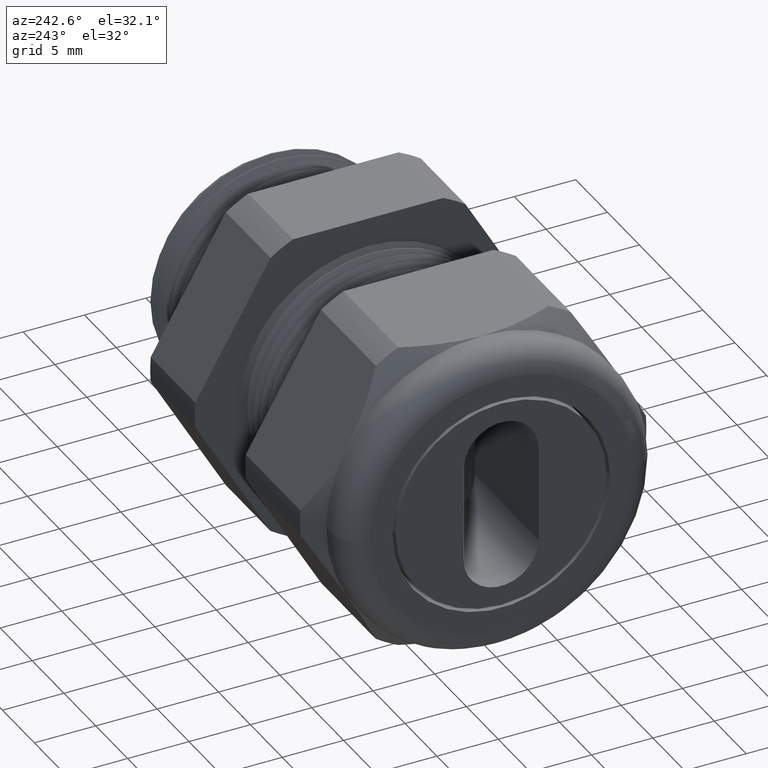
[diagram: clean part render]
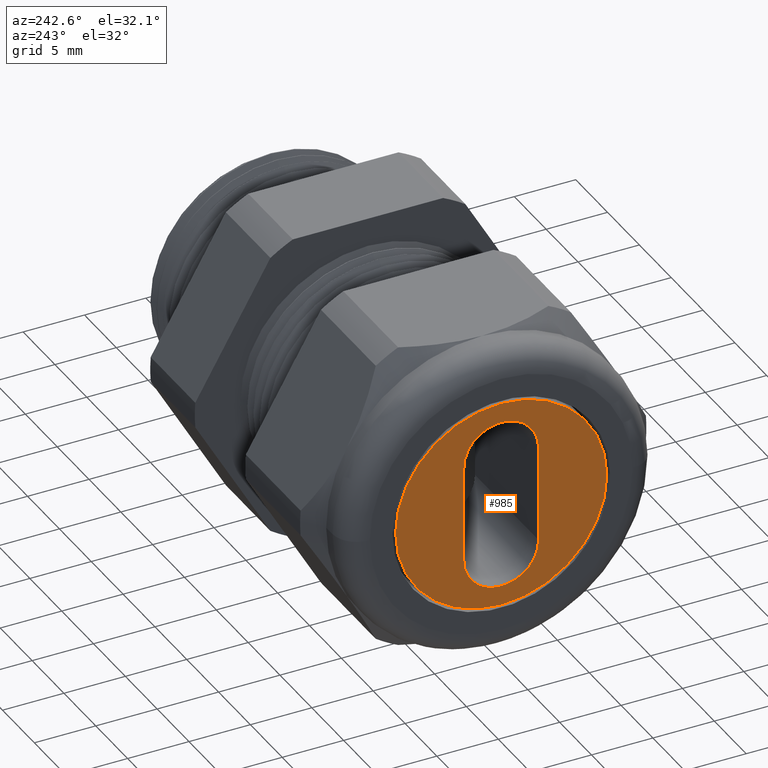
[diagram: same view with one face highlighted and labeled with its STEP entity id]
A machine part, auxiliary view. The second image highlights one B-rep face of the part: STEP entity #985.
In plain terms, the highlighted planar face has unit normal (-1, 0, 0).
Its self-contained STEP definition (entity closure, byte-faithful):
#918 = ORIENTED_EDGE ( 'NONE', *, *, #982, .T. ) ;
#919 = ORIENTED_EDGE ( 'NONE', *, *, #947, .T. ) ;
#923 = VERTEX_POINT ( 'NONE', #2841 ) ;
#924 = ORIENTED_EDGE ( 'NONE', *, *, #925, .F. ) ;
#925 = EDGE_CURVE ( 'NONE', #932, #923, #2903, .T. ) ;
#926 = EDGE_LOOP ( 'NONE', ( #918, #919 ) ) ;
#928 = VERTEX_POINT ( 'NONE', #2894 ) ;
#929 = ORIENTED_EDGE ( 'NONE', *, *, #930, .F. ) ;
#930 = EDGE_CURVE ( 'NONE', #931, #932, #2893, .T. ) ;
#931 = VERTEX_POINT ( 'NONE', #2888 ) ;
#932 = VERTEX_POINT ( 'NONE', #2887 ) ;
#933 = ORIENTED_EDGE ( 'NONE', *, *, #934, .F. ) ;
#934 = EDGE_CURVE ( 'NONE', #935, #931, #2886, .T. ) ;
#935 = VERTEX_POINT ( 'NONE', #2882 ) ;
#936 = ORIENTED_EDGE ( 'NONE', *, *, #937, .F. ) ;
#937 = EDGE_CURVE ( 'NONE', #923, #935, #2881, .T. ) ;
#947 = EDGE_CURVE ( 'NONE', #928, #983, #2931, .T. ) ;
#982 = EDGE_CURVE ( 'NONE', #983, #928, #2999, .T. ) ;
#983 = VERTEX_POINT ( 'NONE', #2994 ) ;
#985 = ADVANCED_FACE ( 'NONE', ( #2993, #2992 ), #2991, .T. ) ;
#986 = EDGE_LOOP ( 'NONE', ( #929, #933, #936, #924 ) ) ;
#2841 = CARTESIAN_POINT ( 'NONE',  ( -1.409999999999999900, -0.1199999999999999500, 0.1550000000000000500 ) ) ;
#2877 = DIRECTION ( 'NONE',  ( 0.0000000000000000000, 1.000000000000000000, 0.0000000000000000000 ) ) ;
#2878 = DIRECTION ( 'NONE',  ( -1.000000000000000000, 3.749030204222210100E-017, 0.0000000000000000000 ) ) ;
#2879 = CARTESIAN_POINT ( 'NONE',  ( -1.409999999999999900, 5.296200667510213900E-017, 0.1550000000000000500 ) ) ;
#2880 = AXIS2_PLACEMENT_3D ( 'NONE', #2879, #2878, #2877 ) ;
#2881 = CIRCLE ( 'NONE', #2880, 0.1200000000000000000 ) ;
#2882 = CARTESIAN_POINT ( 'NONE',  ( -1.409999999999999900, 0.1200000000000000500, 0.1550000000000000500 ) ) ;
#2883 = DIRECTION ( 'NONE',  ( 0.0000000000000000000, 0.0000000000000000000, -1.000000000000000000 ) ) ;
#2884 = VECTOR ( 'NONE', #2883, 39.37007874015748100 ) ;
#2885 = CARTESIAN_POINT ( 'NONE',  ( -1.409999999999999900, 0.1200000000000000500, -0.1550000000000000500 ) ) ;
#2886 = LINE ( 'NONE', #2885, #2884 ) ;
#2887 = CARTESIAN_POINT ( 'NONE',  ( -1.409999999999999900, -0.1199999999999999500, -0.1550000000000000500 ) ) ;
#2888 = CARTESIAN_POINT ( 'NONE',  ( -1.409999999999999900, 0.1200000000000000500, -0.1550000000000000500 ) ) ;
#2889 = DIRECTION ( 'NONE',  ( 0.0000000000000000000, -1.000000000000000000, 0.0000000000000000000 ) ) ;
#2890 = DIRECTION ( 'NONE',  ( -1.000000000000000000, 3.749030204222210100E-017, 0.0000000000000000000 ) ) ;
#2891 = CARTESIAN_POINT ( 'NONE',  ( -1.409999999999999900, 5.286132587953316300E-017, -0.1550000000000000500 ) ) ;
#2892 = AXIS2_PLACEMENT_3D ( 'NONE', #2891, #2890, #2889 ) ;
#2893 = CIRCLE ( 'NONE', #2892, 0.1200000000000000000 ) ;
#2894 = CARTESIAN_POINT ( 'NONE',  ( -1.409999999999999900, 0.3384999999999997500, 4.145429415113786400E-017 ) ) ;
#2900 = DIRECTION ( 'NONE',  ( 0.0000000000000000000, 0.0000000000000000000, 1.000000000000000000 ) ) ;
#2901 = VECTOR ( 'NONE', #2900, 39.37007874015748100 ) ;
#2902 = CARTESIAN_POINT ( 'NONE',  ( -1.409999999999999900, -0.1199999999999999500, -0.1550000000000000500 ) ) ;
#2903 = LINE ( 'NONE', #2902, #2901 ) ;
#2927 = DIRECTION ( 'NONE',  ( 0.0000000000000000000, -1.000000000000000000, 0.0000000000000000000 ) ) ;
#2928 = DIRECTION ( 'NONE',  ( -1.000000000000000000, 3.749030204222210100E-017, 0.0000000000000000000 ) ) ;
#2929 = CARTESIAN_POINT ( 'NONE',  ( -1.409999999999999900, 5.286132587953316300E-017, 0.0000000000000000000 ) ) ;
#2930 = AXIS2_PLACEMENT_3D ( 'NONE', #2929, #2928, #2927 ) ;
#2931 = CIRCLE ( 'NONE', #2930, 0.3384999999999996900 ) ;
#2987 = DIRECTION ( 'NONE',  ( -3.749030204222210100E-017, -1.000000000000000000, 0.0000000000000000000 ) ) ;
#2988 = DIRECTION ( 'NONE',  ( -1.000000000000000000, 3.749030204222210100E-017, 0.0000000000000000000 ) ) ;
#2989 = CARTESIAN_POINT ( 'NONE',  ( -1.409999999999999900, 5.286132587953316300E-017, 0.0000000000000000000 ) ) ;
#2990 = AXIS2_PLACEMENT_3D ( 'NONE', #2989, #2988, #2987 ) ;
#2991 = PLANE ( 'NONE',  #2990 ) ;
#2992 = FACE_OUTER_BOUND ( 'NONE', #926, .T. ) ;
#2993 = FACE_BOUND ( 'NONE', #986, .T. ) ;
#2994 = CARTESIAN_POINT ( 'NONE',  ( -1.409999999999999900, -0.3384999999999996300, 0.0000000000000000000 ) ) ;
#2995 = DIRECTION ( 'NONE',  ( 0.0000000000000000000, -1.000000000000000000, 0.0000000000000000000 ) ) ;
#2996 = DIRECTION ( 'NONE',  ( -1.000000000000000000, 3.749030204222210100E-017, 0.0000000000000000000 ) ) ;
#2997 = CARTESIAN_POINT ( 'NONE',  ( -1.409999999999999900, 5.286132587953316300E-017, 0.0000000000000000000 ) ) ;
#2998 = AXIS2_PLACEMENT_3D ( 'NONE', #2997, #2996, #2995 ) ;
#2999 = CIRCLE ( 'NONE', #2998, 0.3384999999999996900 ) ;